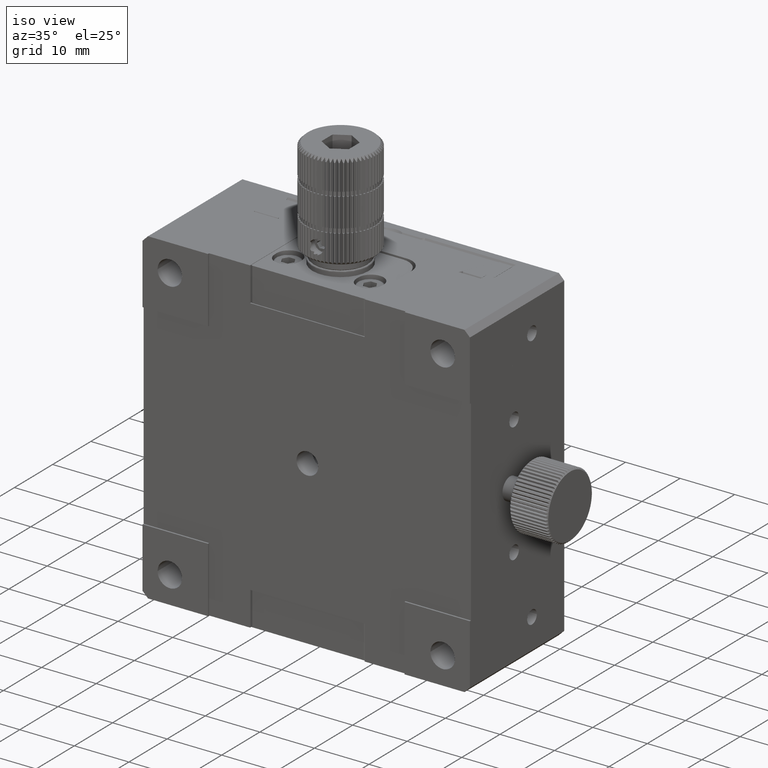
[diagram: clean part render]
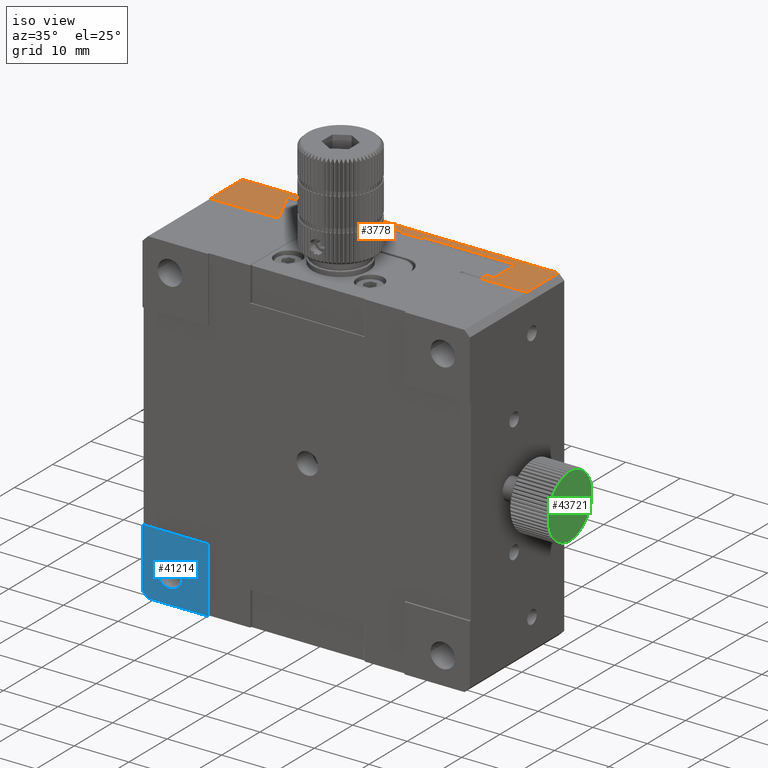
[diagram: same view with three faces highlighted in distinct colors, each labeled with its STEP entity id]
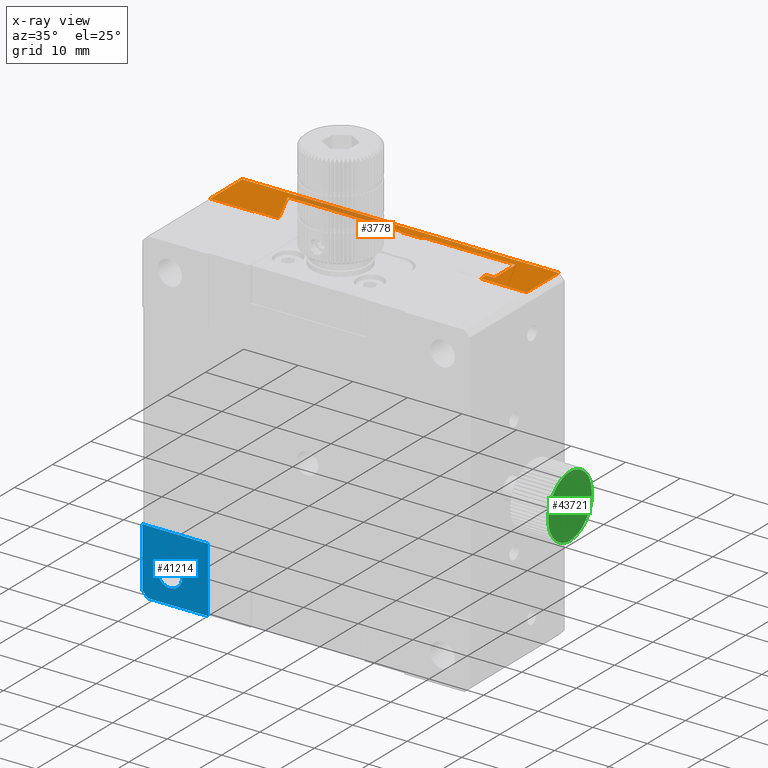
[diagram: x-ray of the same camera — body ghosted, the three highlighted faces saturated]
A machine part, iso view with three faces highlighted in distinct colors.
The next image is the same camera in x-ray (body ghosted, the three faces saturated) — at least one of them is partly hidden behind the body in this view.
Their STEP definitions:

[orange] entity #3778 — the highlighted planar face has unit normal (0, -0, 1).
#325 = LINE ( 'NONE', #21291, #65846 ) ;
#432 = CARTESIAN_POINT ( 'NONE',  ( 72.10815170115014894, 59.70294788844022804, 80.22904667704473525 ) ) ;
#543 = FACE_OUTER_BOUND ( 'NONE', #53449, .T. ) ;
#1493 = EDGE_CURVE ( 'NONE', #29576, #29536, #51412, .T. ) ;
#1682 = CARTESIAN_POINT ( 'NONE',  ( 21.05815170115008073, 52.64446860276301976, 80.22904667704482051 ) ) ;
#2048 = EDGE_CURVE ( 'NONE', #66792, #64728, #63576, .T. ) ;
#2277 = CARTESIAN_POINT ( 'NONE',  ( 33.35815170115007078, 52.82654557281198748, 80.22904667704480630 ) ) ;
#2415 = CARTESIAN_POINT ( 'NONE',  ( 32.31359107524117036, 55.26685083122947617, 80.22904667704480630 ) ) ;
#3261 = VERTEX_POINT ( 'NONE', #12279 ) ;
#3625 = CARTESIAN_POINT ( 'NONE',  ( 20.05815170114998125, 59.31600454547530177, 80.22904667704482051 ) ) ;
#3778 = ADVANCED_FACE ( 'NONE', ( #543 ), #42197, .T. ) ;
#4507 = CARTESIAN_POINT ( 'NONE',  ( 33.35815170115006367, 53.06532955048603384, 80.22904667704480630 ) ) ;
#5037 = VECTOR ( 'NONE', #45943, 1000.000000000000000 ) ;
#5071 = LINE ( 'NONE', #31550, #36426 ) ;
#7370 = VERTEX_POINT ( 'NONE', #43522 ) ;
#8144 = ORIENTED_EDGE ( 'NONE', *, *, #38265, .T. ) ;
#8396 = ORIENTED_EDGE ( 'NONE', *, *, #38250, .F. ) ;
#8597 = CARTESIAN_POINT ( 'NONE',  ( 44.59989413165446592, 59.70294788844032041, 80.22904667704477788 ) ) ;
#8728 = VERTEX_POINT ( 'NONE', #15324 ) ;
#9062 = EDGE_CURVE ( 'NONE', #3261, #29576, #54902, .T. ) ;
#9269 = CARTESIAN_POINT ( 'NONE',  ( 48.53828328579301399, 59.31600454547530887, 80.22904667704477788 ) ) ;
#9869 = CARTESIAN_POINT ( 'NONE',  ( 70.60815170115003525, 52.64446860276284212, 80.22904667704474946 ) ) ;
#10220 = DIRECTION ( 'NONE',  ( 4.044064531500966096E-15, 1.000000000000000000, -0.000000000000000000 ) ) ;
#10586 = VERTEX_POINT ( 'NONE', #4507 ) ;
#10661 = CARTESIAN_POINT ( 'NONE',  ( 55.14806868064293610, 59.51128224827511559, 80.22904667704477788 ) ) ;
#10806 = DIRECTION ( 'NONE',  ( -4.044064531500966096E-15, -1.000000000000000000, -0.000000000000000000 ) ) ;
#11087 = VECTOR ( 'NONE', #27030, 1000.000000000000000 ) ;
#12279 = CARTESIAN_POINT ( 'NONE',  ( 79.05815170115008073, 61.03657315266974592, 80.22904667704472104 ) ) ;
#12521 = VERTEX_POINT ( 'NONE', #49401 ) ;
#12531 = ORIENTED_EDGE ( 'NONE', *, *, #42573, .T. ) ;
#12984 = VERTEX_POINT ( 'NONE', #29308 ) ;
#14172 = CARTESIAN_POINT ( 'NONE',  ( 29.05815170115022283, 96.33657315266994203, 80.22904667704480630 ) ) ;
#15324 = CARTESIAN_POINT ( 'NONE',  ( 48.53828328579301399, 59.31600454547530887, 80.22904667704477788 ) ) ;
#15624 = LINE ( 'NONE', #58007, #32647 ) ;
#15728 = DIRECTION ( 'NONE',  ( 1.000000000000000000, 0.000000000000000000, -1.529834895190537477E-15 ) ) ;
#16976 = DIRECTION ( 'NONE',  ( 1.000000000000000000, 0.000000000000000000, -1.529834895190537477E-15 ) ) ;
#17232 = VERTEX_POINT ( 'NONE', #44783 ) ;
#17744 = CARTESIAN_POINT ( 'NONE',  ( 30.29612268022863830, 59.70294788844034173, 80.22904667704480630 ) ) ;
#18379 = EDGE_CURVE ( 'NONE', #18647, #20755, #33721, .T. ) ;
#18557 = CARTESIAN_POINT ( 'NONE',  ( 48.77318779754595113, 59.44020278623609244, 80.22904667704479209 ) ) ;
#18647 = VERTEX_POINT ( 'NONE', #9869 ) ;
#18660 = ORIENTED_EDGE ( 'NONE', *, *, #44884, .T. ) ;
#18858 = VECTOR ( 'NONE', #61370, 1000.000000000000000 ) ;
#19054 = LINE ( 'NONE', #41443, #50111 ) ;
#19128 = B_SPLINE_CURVE_WITH_KNOTS ( 'NONE', 3,
 ( #8597, #50299, #50633, #24415, #45454, #19258 ),
 .UNSPECIFIED., .F., .F.,
 ( 4, 2, 4 ),
 ( 6.938893903907228378E-18, 0.0003183844691076089927, 0.0006367689382152110465 ),
 .UNSPECIFIED. ) ;
#19151 = CARTESIAN_POINT ( 'NONE',  ( 20.05815170114998125, 59.70294788844025646, 80.22904667704482051 ) ) ;
#19258 = CARTESIAN_POINT ( 'NONE',  ( 45.05815170115005941, 59.31600454547530887, 80.22904667704477788 ) ) ;
#20036 = AXIS2_PLACEMENT_3D ( 'NONE', #38022, #32161, #63206 ) ;
#20122 = LINE ( 'NONE', #3625, #37445 ) ;
#20171 = VECTOR ( 'NONE', #34053, 1000.000000000000000 ) ;
#20755 = VERTEX_POINT ( 'NONE', #23261 ) ;
#21291 = CARTESIAN_POINT ( 'NONE',  ( 20.05815170114998125, 59.70294788844034883, 80.22904667704482051 ) ) ;
#21310 = CARTESIAN_POINT ( 'NONE',  ( 55.05815170115006651, 59.31600454547528045, 80.22904667704476367 ) ) ;
#21391 = VECTOR ( 'NONE', #24688, 1000.000000000000000 ) ;
#21939 = CARTESIAN_POINT ( 'NONE',  ( 55.51640927064564579, 59.70294788844025646, 80.22904667704476367 ) ) ;
#22492 = CARTESIAN_POINT ( 'NONE',  ( 20.05815170114998125, 52.64446860276301976, 80.22904667704482051 ) ) ;
#23083 = EDGE_CURVE ( 'NONE', #63766, #66792, #30161, .T. ) ;
#23261 = CARTESIAN_POINT ( 'NONE',  ( 79.05815170115005230, 52.64446860276281370, 80.22904667704472104 ) ) ;
#23390 = CARTESIAN_POINT ( 'NONE',  ( 20.05815170114998125, 52.64446860276284212, 80.22904667704482051 ) ) ;
#24341 = EDGE_CURVE ( 'NONE', #12521, #56355, #19128, .T. ) ;
#24415 = CARTESIAN_POINT ( 'NONE',  ( 44.96787964750015476, 59.51175992926563652, 80.22904667704479209 ) ) ;
#24688 = DIRECTION ( 'NONE',  ( -1.000000000000000000, 4.044064531500963730E-15, 1.529834895190534914E-15 ) ) ;
#25324 = ORIENTED_EDGE ( 'NONE', *, *, #1493, .T. ) ;
#26315 = B_SPLINE_CURVE_WITH_KNOTS ( 'NONE', 3,
 ( #9269, #18557, #34736, #45439, #56470, #28874, #55787, #39231, #55083, #39564 ),
 .UNSPECIFIED., .F., .F.,
 ( 4, 2, 2, 2, 4 ),
 ( 0.000000000000000000, 0.0007867719291636782013, 0.001573543858327356403, 0.002360315787491034604, 0.003147087716654712805 ),
 .UNSPECIFIED. ) ;
#26663 = EDGE_CURVE ( 'NONE', #56355, #8728, #47415, .T. ) ;
#27030 = DIRECTION ( 'NONE',  ( -1.658650317003230900E-34, -1.000000000000000000, -1.084202172546632728E-19 ) ) ;
#27081 = EDGE_CURVE ( 'NONE', #29536, #55600, #38671, .T. ) ;
#27105 = ORIENTED_EDGE ( 'NONE', *, *, #52237, .F. ) ;
#27803 = VECTOR ( 'NONE', #51214, 1000.000000000000000 ) ;
#28663 = DIRECTION ( 'NONE',  ( 1.000000000000000000, 0.000000000000000000, -1.529834895190537477E-15 ) ) ;
#28874 = CARTESIAN_POINT ( 'NONE',  ( 50.32464283857801490, 59.70290933974226277, 80.22904667704477788 ) ) ;
#29247 = CARTESIAN_POINT ( 'NONE',  ( 33.35815170115006367, 53.06532955048603384, 80.22904667704480630 ) ) ;
#29308 = CARTESIAN_POINT ( 'NONE',  ( 55.05815170115006651, 59.31600454547528045, 80.22904667704476367 ) ) ;
#29536 = VERTEX_POINT ( 'NONE', #1682 ) ;
#29576 = VERTEX_POINT ( 'NONE', #54379 ) ;
#30161 = LINE ( 'NONE', #19151, #27803 ) ;
#30355 = CARTESIAN_POINT ( 'NONE',  ( 21.05815170115010204, 36.33657315266998467, 80.22904667704482051 ) ) ;
#31327 = ORIENTED_EDGE ( 'NONE', *, *, #66217, .F. ) ;
#31550 = CARTESIAN_POINT ( 'NONE',  ( 70.60815170115021999, 96.33657315266977150, 80.22904667704474946 ) ) ;
#31773 = LINE ( 'NONE', #42805, #48132 ) ;
#32161 = DIRECTION ( 'NONE',  ( 1.529834895190537477E-15, -1.084202172546632728E-19, 1.000000000000000000 ) ) ;
#32516 = VECTOR ( 'NONE', #50359, 1000.000000000000000 ) ;
#32647 = VECTOR ( 'NONE', #16976, 1000.000000000000000 ) ;
#33022 = CARTESIAN_POINT ( 'NONE',  ( 31.28995718846100260, 57.47802591839305819, 80.22904667704480630 ) ) ;
#33721 = LINE ( 'NONE', #23390, #20171 ) ;
#33863 = CARTESIAN_POINT ( 'NONE',  ( 20.05815170115008073, 61.03657315266993066, 80.22904667704489157 ) ) ;
#34053 = DIRECTION ( 'NONE',  ( 1.000000000000000000, 0.000000000000000000, -1.529834895190537477E-15 ) ) ;
#34274 = VERTEX_POINT ( 'NONE', #2277 ) ;
#34736 = CARTESIAN_POINT ( 'NONE',  ( 49.01754752376809421, 59.53632290999900789, 80.22904667704476367 ) ) ;
#35056 = ORIENTED_EDGE ( 'NONE', *, *, #2048, .T. ) ;
#35987 = EDGE_CURVE ( 'NONE', #20755, #3261, #19054, .T. ) ;
#36026 = ORIENTED_EDGE ( 'NONE', *, *, #24341, .T. ) ;
#36426 = VECTOR ( 'NONE', #10220, 1000.000000000000000 ) ;
#37119 = CARTESIAN_POINT ( 'NONE',  ( 45.05815170115005941, 59.31600454547530887, 80.22904667704477788 ) ) ;
#37311 = ORIENTED_EDGE ( 'NONE', *, *, #35987, .T. ) ;
#37388 = CARTESIAN_POINT ( 'NONE',  ( 20.05815170114998125, 59.31600454547530887, 80.22904667704482051 ) ) ;
#37445 = VECTOR ( 'NONE', #57000, 1000.000000000000000 ) ;
#38022 = CARTESIAN_POINT ( 'NONE',  ( 20.05815170114998125, 36.33657315266998467, 80.22904667704482051 ) ) ;
#38250 = EDGE_CURVE ( 'NONE', #10586, #34274, #31773, .T. ) ;
#38265 = EDGE_CURVE ( 'NONE', #17232, #34274, #15624, .T. ) ;
#38671 = LINE ( 'NONE', #22492, #45680 ) ;
#39231 = CARTESIAN_POINT ( 'NONE',  ( 51.09362212894896516, 59.53808683234442611, 80.22904667704476367 ) ) ;
#39333 = ORIENTED_EDGE ( 'NONE', *, *, #65021, .T. ) ;
#39564 = CARTESIAN_POINT ( 'NONE',  ( 51.57802011650709773, 59.31600454547528045, 80.22904667704477788 ) ) ;
#39891 = VERTEX_POINT ( 'NONE', #45932 ) ;
#39904 = B_SPLINE_CURVE_WITH_KNOTS ( 'NONE', 3,
 ( #29247, #2415, #33022, #49259 ),
 .UNSPECIFIED., .F., .F.,
 ( 4, 4 ),
 ( 2.194270917860438266E-17, 0.007309856286228339634 ),
 .UNSPECIFIED. ) ;
#40201 = LINE ( 'NONE', #46402, #21391 ) ;
#41039 = CARTESIAN_POINT ( 'NONE',  ( 72.10815170115013473, 54.10814670791576475, 80.22904667704472104 ) ) ;
#41443 = CARTESIAN_POINT ( 'NONE',  ( 79.05815170115005230, 36.33657315266998467, 80.22904667704472104 ) ) ;
#41520 = ORIENTED_EDGE ( 'NONE', *, *, #9062, .T. ) ;
#41662 = CARTESIAN_POINT ( 'NONE',  ( 29.05815170115004875, 52.64446860276300555, 80.22904667704480630 ) ) ;
#42197 = PLANE ( 'NONE',  #20036 ) ;
#42314 = DIRECTION ( 'NONE',  ( 1.000000000000000000, 0.000000000000000000, -1.529834895190537477E-15 ) ) ;
#42317 = ORIENTED_EDGE ( 'NONE', *, *, #23083, .T. ) ;
#42573 = EDGE_CURVE ( 'NONE', #60809, #12521, #325, .T. ) ;
#42805 = CARTESIAN_POINT ( 'NONE',  ( 33.35815170115023420, 96.33657315266975729, 80.22904667704480630 ) ) ;
#43522 = CARTESIAN_POINT ( 'NONE',  ( 70.60815170115006367, 54.10814670791577896, 80.22904667704472104 ) ) ;
#44200 = B_SPLINE_CURVE_WITH_KNOTS ( 'NONE', 3,
 ( #21310, #52363, #10661, #46848, #63348, #45210 ),
 .UNSPECIFIED., .F., .F.,
 ( 4, 2, 4 ),
 ( 1.551583845779545699E-17, 0.0003168569488583838087, 0.0006337138977167521134 ),
 .UNSPECIFIED. ) ;
#44783 = CARTESIAN_POINT ( 'NONE',  ( 29.05815170115002744, 52.82654557281199459, 80.22904667704480630 ) ) ;
#44817 = LINE ( 'NONE', #14172, #32516 ) ;
#44884 = EDGE_CURVE ( 'NONE', #8728, #39891, #26315, .T. ) ;
#45210 = CARTESIAN_POINT ( 'NONE',  ( 55.51640927064564579, 59.70294788844025646, 80.22904667704476367 ) ) ;
#45439 = CARTESIAN_POINT ( 'NONE',  ( 49.52664142020572058, 59.66805939803035130, 80.22904667704473525 ) ) ;
#45454 = CARTESIAN_POINT ( 'NONE',  ( 45.02369551962942751, 59.41762160378897306, 80.22904667704479209 ) ) ;
#45680 = VECTOR ( 'NONE', #28663, 1000.000000000000000 ) ;
#45932 = CARTESIAN_POINT ( 'NONE',  ( 51.57802011650709773, 59.31600454547528045, 80.22904667704477788 ) ) ;
#45943 = DIRECTION ( 'NONE',  ( -1.000000000000000000, 2.786949713345703173E-15, 2.786949713345766676E-15 ) ) ;
#46402 = CARTESIAN_POINT ( 'NONE',  ( 80.05815170115008073, 54.10814670791572922, 80.22904667704469261 ) ) ;
#46848 = CARTESIAN_POINT ( 'NONE',  ( 55.30508683203052556, 59.65546639754870739, 80.22904667704474946 ) ) ;
#47044 = ORIENTED_EDGE ( 'NONE', *, *, #18379, .T. ) ;
#47415 = LINE ( 'NONE', #37388, #57733 ) ;
#48132 = VECTOR ( 'NONE', #10806, 1000.000000000000000 ) ;
#48261 = EDGE_CURVE ( 'NONE', #64728, #7370, #40201, .T. ) ;
#48285 = ORIENTED_EDGE ( 'NONE', *, *, #55503, .T. ) ;
#49259 = CARTESIAN_POINT ( 'NONE',  ( 30.29612268022863830, 59.70294788844034173, 80.22904667704480630 ) ) ;
#49401 = CARTESIAN_POINT ( 'NONE',  ( 44.59989413165446592, 59.70294788844032041, 80.22904667704477788 ) ) ;
#50111 = VECTOR ( 'NONE', #61754, 1000.000000000000000 ) ;
#50299 = CARTESIAN_POINT ( 'NONE',  ( 44.70777500624257783, 59.70294788844029199, 80.22904667704480630 ) ) ;
#50359 = DIRECTION ( 'NONE',  ( -4.044064531500966096E-15, -1.000000000000000000, -0.000000000000000000 ) ) ;
#50633 = CARTESIAN_POINT ( 'NONE',  ( 44.81075812264253244, 59.65573495709907093, 80.22904667704482051 ) ) ;
#51214 = DIRECTION ( 'NONE',  ( 1.000000000000000000, 0.000000000000000000, -1.529834895190537477E-15 ) ) ;
#51412 = LINE ( 'NONE', #30355, #18858 ) ;
#52237 = EDGE_CURVE ( 'NONE', #17232, #55600, #44817, .T. ) ;
#52363 = CARTESIAN_POINT ( 'NONE',  ( 55.09264991381699872, 59.41774556068885715, 80.22904667704476367 ) ) ;
#53449 = EDGE_LOOP ( 'NONE', ( #31327, #47044, #37311, #41520, #25324, #66334, #27105, #8144, #8396, #39333, #12531, #36026, #56494, #18660, #60994, #48285, #42317, #35056, #65175 ) ) ;
#54379 = CARTESIAN_POINT ( 'NONE',  ( 21.05815170115009494, 61.03657315266994488, 80.22904667704483472 ) ) ;
#54902 = LINE ( 'NONE', #33863, #5037 ) ;
#55083 = CARTESIAN_POINT ( 'NONE',  ( 51.34303148401061634, 59.44024726238631473, 80.22904667704477788 ) ) ;
#55503 = EDGE_CURVE ( 'NONE', #12984, #63766, #44200, .T. ) ;
#55600 = VERTEX_POINT ( 'NONE', #41662 ) ;
#55787 = CARTESIAN_POINT ( 'NONE',  ( 50.58467475604262376, 59.66890569793075372, 80.22904667704476367 ) ) ;
#56355 = VERTEX_POINT ( 'NONE', #37119 ) ;
#56470 = CARTESIAN_POINT ( 'NONE',  ( 49.79255663400212484, 59.70298637227422489, 80.22904667704477788 ) ) ;
#56494 = ORIENTED_EDGE ( 'NONE', *, *, #26663, .T. ) ;
#57000 = DIRECTION ( 'NONE',  ( 1.000000000000000000, 0.000000000000000000, -1.529834895190537477E-15 ) ) ;
#57733 = VECTOR ( 'NONE', #15728, 1000.000000000000000 ) ;
#58007 = CARTESIAN_POINT ( 'NONE',  ( 20.05815170114998125, 52.82654557281200169, 80.22904667704482051 ) ) ;
#60809 = VERTEX_POINT ( 'NONE', #17744 ) ;
#60847 = EDGE_CURVE ( 'NONE', #39891, #12984, #20122, .T. ) ;
#60994 = ORIENTED_EDGE ( 'NONE', *, *, #60847, .T. ) ;
#61370 = DIRECTION ( 'NONE',  ( -1.658650317003230900E-34, -1.000000000000000000, -1.084202172546632728E-19 ) ) ;
#61754 = DIRECTION ( 'NONE',  ( 1.658650317003230900E-34, 1.000000000000000000, 1.084202172546632728E-19 ) ) ;
#63206 = DIRECTION ( 'NONE',  ( 1.000000000000000000, 0.000000000000000000, -1.529834895190537477E-15 ) ) ;
#63348 = CARTESIAN_POINT ( 'NONE',  ( 55.40815958516823514, 59.70294788844024936, 80.22904667704477788 ) ) ;
#63576 = LINE ( 'NONE', #63904, #11087 ) ;
#63766 = VERTEX_POINT ( 'NONE', #21939 ) ;
#63904 = CARTESIAN_POINT ( 'NONE',  ( 72.10815170115007788, 36.33657315266998467, 80.22904667704473525 ) ) ;
#64728 = VERTEX_POINT ( 'NONE', #41039 ) ;
#65021 = EDGE_CURVE ( 'NONE', #10586, #60809, #39904, .T. ) ;
#65175 = ORIENTED_EDGE ( 'NONE', *, *, #48261, .T. ) ;
#65846 = VECTOR ( 'NONE', #42314, 1000.000000000000000 ) ;
#66217 = EDGE_CURVE ( 'NONE', #18647, #7370, #5071, .T. ) ;
#66334 = ORIENTED_EDGE ( 'NONE', *, *, #27081, .T. ) ;
#66792 = VERTEX_POINT ( 'NONE', #432 ) ;

[blue] entity #41214 — the highlighted planar face has unit normal (-0, -1, 0).
#299 = CARTESIAN_POINT ( 'NONE',  ( 20.05815170114988888, 36.33657315266991361, 32.22904667704491999 ) ) ;
#824 = EDGE_LOOP ( 'NONE', ( #33374 ) ) ;
#1544 = ORIENTED_EDGE ( 'NONE', *, *, #63346, .T. ) ;
#2115 = VECTOR ( 'NONE', #14434, 1000.000000000000000 ) ;
#2751 = ORIENTED_EDGE ( 'NONE', *, *, #43564, .F. ) ;
#6301 = FACE_BOUND ( 'NONE', #824, .T. ) ;
#8166 = CIRCLE ( 'NONE', #66486, 2.249999999999998668 ) ;
#8562 = ORIENTED_EDGE ( 'NONE', *, *, #65039, .F. ) ;
#9672 = DIRECTION ( 'NONE',  ( -4.069722497502069316E-15, 0.000000000000000000, -1.000000000000000000 ) ) ;
#11384 = AXIS2_PLACEMENT_3D ( 'NONE', #37946, #38279, #27259 ) ;
#14434 = DIRECTION ( 'NONE',  ( 1.000000000000000000, 0.000000000000000000, -3.491481338843133355E-15 ) ) ;
#17334 = LINE ( 'NONE', #38319, #58959 ) ;
#18228 = VERTEX_POINT ( 'NONE', #54875 ) ;
#18412 = ORIENTED_EDGE ( 'NONE', *, *, #50318, .T. ) ;
#18731 = CARTESIAN_POINT ( 'NONE',  ( 32.05815170114986046, 36.33657315266987098, 32.22904667704489157 ) ) ;
#19036 = VERTEX_POINT ( 'NONE', #19376 ) ;
#19376 = CARTESIAN_POINT ( 'NONE',  ( 32.05815170114983914, 36.33657315266987098, 20.22904667704490222 ) ) ;
#20983 = VECTOR ( 'NONE', #48764, 1000.000000000000000 ) ;
#23227 = CARTESIAN_POINT ( 'NONE',  ( 20.05815170114988533, 36.33657315266990651, 32.22904667704494130 ) ) ;
#24913 = EDGE_CURVE ( 'NONE', #37082, #37082, #8166, .T. ) ;
#27259 = DIRECTION ( 'NONE',  ( 1.000000000000000000, -3.491481338843133355E-15, 0.000000000000000000 ) ) ;
#27588 = CARTESIAN_POINT ( 'NONE',  ( 20.05815170114993862, 36.33657315266990651, 20.22904667704492709 ) ) ;
#33140 = DIRECTION ( 'NONE',  ( 0.7071067811865414665, -4.906538933386766476E-15, -0.7071067811865536790 ) ) ;
#33374 = ORIENTED_EDGE ( 'NONE', *, *, #24913, .T. ) ;
#33456 = DIRECTION ( 'NONE',  ( 3.491481338843133355E-15, 1.000000000000000000, -1.219044193948983948E-29 ) ) ;
#37082 = VERTEX_POINT ( 'NONE', #52295 ) ;
#37946 = CARTESIAN_POINT ( 'NONE',  ( 20.05815170115006651, 36.33657315266990651, 80.22904667704491999 ) ) ;
#38279 = DIRECTION ( 'NONE',  ( -3.491481338843133355E-15, -1.000000000000000000, 1.219044193948983948E-29 ) ) ;
#38319 = CARTESIAN_POINT ( 'NONE',  ( 20.05815170114985690, 36.33657315266990651, 21.22904667704493420 ) ) ;
#40286 = CARTESIAN_POINT ( 'NONE',  ( 20.05815170114995638, 36.33657315266991361, 50.22904667704492709 ) ) ;
#41214 = ADVANCED_FACE ( 'NONE', ( #53506, #6301 ), #52818, .T. ) ;
#42380 = VERTEX_POINT ( 'NONE', #18731 ) ;
#43564 = EDGE_CURVE ( 'NONE', #42380, #19036, #57551, .T. ) ;
#45106 = DIRECTION ( 'NONE',  ( 3.491481338843133355E-15, 0.000000000000000000, 1.000000000000000000 ) ) ;
#45122 = VERTEX_POINT ( 'NONE', #299 ) ;
#48764 = DIRECTION ( 'NONE',  ( 1.000000000000000000, 0.000000000000000000, -3.780601918172600941E-15 ) ) ;
#48997 = ORIENTED_EDGE ( 'NONE', *, *, #60731, .F. ) ;
#49688 = CARTESIAN_POINT ( 'NONE',  ( 25.05815170114985335, 36.33657315266988519, 25.22904667704491644 ) ) ;
#50318 = EDGE_CURVE ( 'NONE', #56954, #18228, #17334, .T. ) ;
#50624 = LINE ( 'NONE', #27588, #2115 ) ;
#52295 = CARTESIAN_POINT ( 'NONE',  ( 22.80815170114985690, 36.33657315266989229, 25.22904667704491644 ) ) ;
#52818 = PLANE ( 'NONE',  #11384 ) ;
#53506 = FACE_OUTER_BOUND ( 'NONE', #59531, .T. ) ;
#53844 = DIRECTION ( 'NONE',  ( -1.000000000000000000, 3.083952846180992055E-15, 0.000000000000000000 ) ) ;
#53940 = LINE ( 'NONE', #23227, #20983 ) ;
#54875 = CARTESIAN_POINT ( 'NONE',  ( 21.05815170114989954, 36.33657315266990651, 20.22904667704490933 ) ) ;
#56492 = LINE ( 'NONE', #40286, #67262 ) ;
#56954 = VERTEX_POINT ( 'NONE', #61118 ) ;
#57551 = LINE ( 'NONE', #62692, #65940 ) ;
#58959 = VECTOR ( 'NONE', #33140, 1000.000000000000000 ) ;
#59531 = EDGE_LOOP ( 'NONE', ( #2751, #48997, #8562, #18412, #1544 ) ) ;
#60731 = EDGE_CURVE ( 'NONE', #45122, #42380, #53940, .T. ) ;
#61118 = CARTESIAN_POINT ( 'NONE',  ( 20.05815170114986756, 36.33657315266991361, 21.22904667704491999 ) ) ;
#62692 = CARTESIAN_POINT ( 'NONE',  ( 32.05815170114983914, 36.33657315266986387, 20.22904667704488801 ) ) ;
#63346 = EDGE_CURVE ( 'NONE', #18228, #19036, #50624, .T. ) ;
#65039 = EDGE_CURVE ( 'NONE', #56954, #45122, #56492, .T. ) ;
#65940 = VECTOR ( 'NONE', #9672, 1000.000000000000000 ) ;
#66486 = AXIS2_PLACEMENT_3D ( 'NONE', #49688, #33456, #53844 ) ;
#67262 = VECTOR ( 'NONE', #45106, 1000.000000000000000 ) ;

[green] entity #43721 — the highlighted planar face has unit normal (-1, 0, 0).
#97 = DIRECTION ( 'NONE',  ( -1.000000000000000000, 4.275397595010830718E-15, 1.766407939803210777E-15 ) ) ;
#372 = CARTESIAN_POINT ( 'NONE',  ( 91.06022429536632501, 51.07249865786468490, 46.41500222082284921 ) ) ;
#384 = CIRCLE ( 'NONE', #37755, 5.699999999964747488 ) ;
#441 = AXIS2_PLACEMENT_3D ( 'NONE', #5732, #57759, #57422 ) ;
#575 = AXIS2_PLACEMENT_3D ( 'NONE', #5020, #26657, #4344 ) ;
#610 = CIRCLE ( 'NONE', #14899, 5.699999999964747488 ) ;
#747 = DIRECTION ( 'NONE',  ( -4.869399230842205989E-15, -1.000000000000000000, 0.000000000000000000 ) ) ;
#757 = DIRECTION ( 'NONE',  ( -1.000000000000000000, 4.275397595010830718E-15, 1.766407939803210777E-15 ) ) ;
#875 = CIRCLE ( 'NONE', #14071, 5.699999999964747488 ) ;
#1340 = EDGE_CURVE ( 'NONE', #60702, #67351, #27472, .T. ) ;
#1382 = EDGE_CURVE ( 'NONE', #38825, #28825, #3332, .T. ) ;
#1734 = AXIS2_PLACEMENT_3D ( 'NONE', #40756, #62452, #57639 ) ;
#1739 = ORIENTED_EDGE ( 'NONE', *, *, #38660, .F. ) ;
#1968 = DIRECTION ( 'NONE',  ( -4.869399230842205989E-15, -1.000000000000000000, 0.000000000000000000 ) ) ;
#2097 = AXIS2_PLACEMENT_3D ( 'NONE', #9415, #40746, #29367 ) ;
#2274 = ORIENTED_EDGE ( 'NONE', *, *, #1382, .F. ) ;
#2321 = CARTESIAN_POINT ( 'NONE',  ( 91.06022429536633922, 49.68657315265205909, 55.16539147858547665 ) ) ;
#2644 = CARTESIAN_POINT ( 'NONE',  ( 91.06022429536633922, 52.04378226120030604, 52.54744554256242850 ) ) ;
#2940 = DIRECTION ( 'NONE',  ( -4.869399230842205989E-15, -1.000000000000000000, 0.000000000000000000 ) ) ;
#3042 = CARTESIAN_POINT ( 'NONE',  ( 91.06022429534726825, 46.83657315266968624, 50.22904667704470683 ) ) ;
#3144 = VERTEX_POINT ( 'NONE', #26925 ) ;
#3176 = VERTEX_POINT ( 'NONE', #5433 ) ;
#3224 = DIRECTION ( 'NONE',  ( -4.869399230842205989E-15, -1.000000000000000000, 0.000000000000000000 ) ) ;
#3332 = CIRCLE ( 'NONE', #27619, 5.699999999964747488 ) ;
#3515 = DIRECTION ( 'NONE',  ( -1.000000000000000000, 4.275397595010830718E-15, 1.766407939803210777E-15 ) ) ;
#3675 = VERTEX_POINT ( 'NONE', #27333 ) ;
#4176 = EDGE_CURVE ( 'NONE', #17424, #41180, #67379, .T. ) ;
#4256 = DIRECTION ( 'NONE',  ( -4.869399230842205989E-15, -1.000000000000000000, 0.000000000000000000 ) ) ;
#4287 = VERTEX_POINT ( 'NONE', #7135 ) ;
#4344 = DIRECTION ( 'NONE',  ( -4.869399230842205989E-15, -1.000000000000000000, 0.000000000000000000 ) ) ;
#4485 = CARTESIAN_POINT ( 'NONE',  ( 91.06022429536629659, 41.62936404413909486, 47.91064781152694252 ) ) ;
#4690 = CIRCLE ( 'NONE', #31061, 5.699999999964747488 ) ;
#4754 = DIRECTION ( 'NONE',  ( -4.869399230842205989E-15, -1.000000000000000000, 0.000000000000000000 ) ) ;
#4811 = CIRCLE ( 'NONE', #53198, 5.699999999964747488 ) ;
#4928 = AXIS2_PLACEMENT_3D ( 'NONE', #18103, #54959, #7757 ) ;
#4950 = VERTEX_POINT ( 'NONE', #33872 ) ;
#5020 = CARTESIAN_POINT ( 'NONE',  ( 91.06022429534726825, 46.83657315266968624, 50.22904667704470683 ) ) ;
#5197 = EDGE_CURVE ( 'NONE', #48258, #3176, #4811, .T. ) ;
#5208 = ORIENTED_EDGE ( 'NONE', *, *, #20572, .F. ) ;
#5384 = ORIENTED_EDGE ( 'NONE', *, *, #42613, .F. ) ;
#5433 = CARTESIAN_POINT ( 'NONE',  ( 91.06022429536631080, 42.60064764747473021, 54.04309113326659286 ) ) ;
#5630 = CARTESIAN_POINT ( 'NONE',  ( 91.06022429534726825, 46.83657315266968624, 50.22904667704470683 ) ) ;
#5689 = AXIS2_PLACEMENT_3D ( 'NONE', #9209, #67737, #56757 ) ;
#5732 = CARTESIAN_POINT ( 'NONE',  ( 91.06022429534726825, 46.83657315266968624, 50.22904667704470683 ) ) ;
#5818 = VERTEX_POINT ( 'NONE', #15446 ) ;
#5942 = DIRECTION ( 'NONE',  ( -4.869399230842205989E-15, -1.000000000000000000, 0.000000000000000000 ) ) ;
#6039 = EDGE_CURVE ( 'NONE', #21705, #10602, #35644, .T. ) ;
#6074 = CARTESIAN_POINT ( 'NONE',  ( 91.06022429536629659, 41.16779834910559543, 50.82485891766661723 ) ) ;
#6291 = DIRECTION ( 'NONE',  ( -4.869399230842205989E-15, -1.000000000000000000, 0.000000000000000000 ) ) ;
#6314 = CARTESIAN_POINT ( 'NONE',  ( 91.06022429534726825, 46.83657315266968624, 50.22904667704470683 ) ) ;
#6431 = ORIENTED_EDGE ( 'NONE', *, *, #19177, .F. ) ;
#6462 = CIRCLE ( 'NONE', #53777, 5.699999999964747488 ) ;
#6695 = CIRCLE ( 'NONE', #52953, 5.699999999964747488 ) ;
#6713 = CARTESIAN_POINT ( 'NONE',  ( 91.06022429536631080, 46.24076091204780425, 44.56027187348060181 ) ) ;
#6814 = CARTESIAN_POINT ( 'NONE',  ( 91.06022429536632501, 50.18694909071611221, 45.61764980913607559 ) ) ;
#6935 = DIRECTION ( 'NONE',  ( -1.000000000000000000, 4.275397595010830718E-15, 1.766407939803210777E-15 ) ) ;
#6973 = CARTESIAN_POINT ( 'NONE',  ( 91.06022429534726825, 46.83657315266968624, 50.22904667704470683 ) ) ;
#7135 = CARTESIAN_POINT ( 'NONE',  ( 91.06022429536632501, 52.25759529551854854, 48.46764980911847687 ) ) ;
#7148 = ORIENTED_EDGE ( 'NONE', *, *, #13272, .F. ) ;
#7537 = CARTESIAN_POINT ( 'NONE',  ( 91.06022429536631080, 47.43238539329168191, 44.56027187348060892 ) ) ;
#7604 = AXIS2_PLACEMENT_3D ( 'NONE', #27795, #54354, #7827 ) ;
#7739 = ORIENTED_EDGE ( 'NONE', *, *, #18616, .F. ) ;
#7757 = DIRECTION ( 'NONE',  ( -4.869399230842205989E-15, -1.000000000000000000, 0.000000000000000000 ) ) ;
#7827 = DIRECTION ( 'NONE',  ( -4.869399230842205989E-15, -1.000000000000000000, 0.000000000000000000 ) ) ;
#8215 = CIRCLE ( 'NONE', #4928, 5.699999999964747488 ) ;
#8225 = EDGE_CURVE ( 'NONE', #64341, #10120, #39136, .T. ) ;
#8230 = CIRCLE ( 'NONE', #45655, 5.699999999964747488 ) ;
#8476 = ORIENTED_EDGE ( 'NONE', *, *, #13669, .F. ) ;
#8648 = DIRECTION ( 'NONE',  ( -4.869399230842205989E-15, -1.000000000000000000, 0.000000000000000000 ) ) ;
#8735 = EDGE_CURVE ( 'NONE', #64274, #37739, #46793, .T. ) ;
#8769 = VERTEX_POINT ( 'NONE', #46704 ) ;
#8830 = AXIS2_PLACEMENT_3D ( 'NONE', #6314, #63484, #31766 ) ;
#8927 = CARTESIAN_POINT ( 'NONE',  ( 91.06022429534726825, 46.83657315266968624, 50.22904667704470683 ) ) ;
#9053 = CARTESIAN_POINT ( 'NONE',  ( 91.06022429536629659, 41.90022835112894484, 47.37904667706229134 ) ) ;
#9163 = CARTESIAN_POINT ( 'NONE',  ( 91.06022429534726825, 46.83657315266968624, 50.22904667704470683 ) ) ;
#9165 = EDGE_CURVE ( 'NONE', #16457, #50871, #56725, .T. ) ;
#9209 = CARTESIAN_POINT ( 'NONE',  ( 91.06022429534726825, 46.83657315266968624, 50.22904667704470683 ) ) ;
#9217 = AXIS2_PLACEMENT_3D ( 'NONE', #11666, #43997, #32304 ) ;
#9231 = EDGE_CURVE ( 'NONE', #50871, #64341, #35800, .T. ) ;
#9377 = CARTESIAN_POINT ( 'NONE',  ( 91.06022429536633922, 49.15497201818739370, 55.43625578557534084 ) ) ;
#9415 = CARTESIAN_POINT ( 'NONE',  ( 91.06022429534726825, 46.83657315266968624, 50.22904667704470683 ) ) ;
#9646 = ORIENTED_EDGE ( 'NONE', *, *, #15660, .F. ) ;
#9669 = ORIENTED_EDGE ( 'NONE', *, *, #42944, .F. ) ;
#9731 = CIRCLE ( 'NONE', #67976, 5.699999999964747488 ) ;
#9757 = DIRECTION ( 'NONE',  ( -1.000000000000000000, 4.275397595010830718E-15, 1.766407939803210777E-15 ) ) ;
#10037 = CARTESIAN_POINT ( 'NONE',  ( 91.06022429536631080, 43.98657315268730628, 55.16539147858546244 ) ) ;
#10120 = VERTEX_POINT ( 'NONE', #6713 ) ;
#10213 = CARTESIAN_POINT ( 'NONE',  ( 91.06022429536629659, 41.26113182852147787, 51.41414331469857046 ) ) ;
#10476 = CARTESIAN_POINT ( 'NONE',  ( 91.06022429536632501, 51.77291795421050580, 47.37904667706239081 ) ) ;
#10602 = VERTEX_POINT ( 'NONE', #56878 ) ;
#10624 = DIRECTION ( 'NONE',  ( -4.869399230842205989E-15, -1.000000000000000000, 0.000000000000000000 ) ) ;
#10870 = DIRECTION ( 'NONE',  ( -4.869399230842205989E-15, -1.000000000000000000, 0.000000000000000000 ) ) ;
#11121 = CARTESIAN_POINT ( 'NONE',  ( 91.06022429536629659, 41.90022835112890220, 53.07904667702706547 ) ) ;
#11449 = AXIS2_PLACEMENT_3D ( 'NONE', #20314, #36465, #25788 ) ;
#11460 = DIRECTION ( 'NONE',  ( -1.000000000000000000, 4.275397595010830718E-15, 1.766407939803210777E-15 ) ) ;
#11504 = DIRECTION ( 'NONE',  ( -1.000000000000000000, 4.275397595010830718E-15, 1.766407939803210777E-15 ) ) ;
#11617 = EDGE_CURVE ( 'NONE', #36659, #43669, #54788, .T. ) ;
#11666 = CARTESIAN_POINT ( 'NONE',  ( 91.06022429534726825, 46.83657315266968624, 50.22904667704470683 ) ) ;
#12022 = DIRECTION ( 'NONE',  ( -1.000000000000000000, 3.942269589734075124E-15, 1.597918576475365727E-15 ) ) ;
#12125 = CARTESIAN_POINT ( 'NONE',  ( 91.06022429536631080, 49.68657315265213725, 45.29270187550397964 ) ) ;
#12918 = CARTESIAN_POINT ( 'NONE',  ( 91.06022429536629659, 43.02252869644782862, 45.99312117184974369 ) ) ;
#13111 = AXIS2_PLACEMENT_3D ( 'NONE', #19729, #34883, #3224 ) ;
#13264 = CARTESIAN_POINT ( 'NONE',  ( 91.06022429534726825, 46.83657315266968624, 50.22904667704470683 ) ) ;
#13272 = EDGE_CURVE ( 'NONE', #25030, #46021, #51662, .T. ) ;
#13669 = EDGE_CURVE ( 'NONE', #46924, #65523, #56069, .T. ) ;
#13759 = CARTESIAN_POINT ( 'NONE',  ( 91.06022429534726825, 46.83657315266968624, 50.22904667704470683 ) ) ;
#13877 = ORIENTED_EDGE ( 'NONE', *, *, #67919, .F. ) ;
#13895 = DIRECTION ( 'NONE',  ( -4.869399230842205989E-15, -1.000000000000000000, 0.000000000000000000 ) ) ;
#13936 = CARTESIAN_POINT ( 'NONE',  ( 91.06022429536631080, 46.83657315266975019, 44.52904667707995401 ) ) ;
#14071 = AXIS2_PLACEMENT_3D ( 'NONE', #41727, #37215, #747 ) ;
#14100 = DIRECTION ( 'NONE',  ( -4.869399230842205989E-15, -1.000000000000000000, 0.000000000000000000 ) ) ;
#14277 = CARTESIAN_POINT ( 'NONE',  ( 91.06022429534726825, 46.83657315266968624, 50.22904667704470683 ) ) ;
#14438 = ORIENTED_EDGE ( 'NONE', *, *, #11617, .F. ) ;
#14562 = DIRECTION ( 'NONE',  ( -1.000000000000000000, 4.275397595010830718E-15, 1.766407939803210777E-15 ) ) ;
#14772 = DIRECTION ( 'NONE',  ( -4.869399230842205989E-15, -1.000000000000000000, 0.000000000000000000 ) ) ;
#14899 = AXIS2_PLACEMENT_3D ( 'NONE', #63772, #97, #16587 ) ;
#14947 = DIRECTION ( 'NONE',  ( -1.000000000000000000, 4.275397595010830718E-15, 1.766407939803210777E-15 ) ) ;
#15015 = VERTEX_POINT ( 'NONE', #38398 ) ;
#15284 = DIRECTION ( 'NONE',  ( -1.000000000000000000, 4.275397595010830718E-15, 1.766407939803210777E-15 ) ) ;
#15446 = CARTESIAN_POINT ( 'NONE',  ( 91.06022429536633922, 52.41201447681789460, 51.41414331469860599 ) ) ;
#15499 = CARTESIAN_POINT ( 'NONE',  ( 91.06022429534726825, 46.83657315266968624, 50.22904667704470683 ) ) ;
#15559 = CARTESIAN_POINT ( 'NONE',  ( 91.06022429534726825, 46.83657315266968624, 50.22904667704470683 ) ) ;
#15620 = VERTEX_POINT ( 'NONE', #52836 ) ;
#15660 = EDGE_CURVE ( 'NONE', #17039, #18824, #29793, .T. ) ;
#15849 = EDGE_CURVE ( 'NONE', #15925, #4950, #61765, .T. ) ;
#15925 = VERTEX_POINT ( 'NONE', #10037 ) ;
#15980 = DIRECTION ( 'NONE',  ( -1.000000000000000000, 4.275397595010830718E-15, 1.766407939803210777E-15 ) ) ;
#16152 = CARTESIAN_POINT ( 'NONE',  ( 91.06022429534726825, 46.83657315266968624, 50.22904667704470683 ) ) ;
#16161 = DIRECTION ( 'NONE',  ( -1.000000000000000000, 4.275397595010830718E-15, 1.766407939803210777E-15 ) ) ;
#16457 = VERTEX_POINT ( 'NONE', #43990 ) ;
#16524 = EDGE_CURVE ( 'NONE', #18619, #38825, #26588, .T. ) ;
#16587 = DIRECTION ( 'NONE',  ( -4.869399230842205989E-15, -1.000000000000000000, 0.000000000000000000 ) ) ;
#16628 = CARTESIAN_POINT ( 'NONE',  ( 91.06022429534726825, 46.83657315266968624, 50.22904667704470683 ) ) ;
#16858 = DIRECTION ( 'NONE',  ( -1.000000000000000000, 4.275397595010830718E-15, 1.766407939803210777E-15 ) ) ;
#16903 = CIRCLE ( 'NONE', #63089, 5.699999999964747488 ) ;
#17039 = VERTEX_POINT ( 'NONE', #45300 ) ;
#17113 = EDGE_CURVE ( 'NONE', #10602, #5818, #38746, .T. ) ;
#17198 = CARTESIAN_POINT ( 'NONE',  ( 91.06022429536631080, 49.12766906478925222, 44.68369912062688343 ) ) ;
#17289 = CARTESIAN_POINT ( 'NONE',  ( 91.06022429536629659, 41.16779834910559543, 49.63323443642273247 ) ) ;
#17424 = VERTEX_POINT ( 'NONE', #30627 ) ;
#17546 = CARTESIAN_POINT ( 'NONE',  ( 91.06022429534726825, 46.83657315266968624, 50.22904667704470683 ) ) ;
#17689 = EDGE_CURVE ( 'NONE', #48193, #4287, #48750, .T. ) ;
#18103 = CARTESIAN_POINT ( 'NONE',  ( 91.06022429534726825, 46.83657315266968624, 50.22904667704470683 ) ) ;
#18250 = VERTEX_POINT ( 'NONE', #50417 ) ;
#18278 = EDGE_CURVE ( 'NONE', #53782, #8769, #384, .T. ) ;
#18552 = VERTEX_POINT ( 'NONE', #6074 ) ;
#18616 = EDGE_CURVE ( 'NONE', #46021, #47837, #37805, .T. ) ;
#18619 = VERTEX_POINT ( 'NONE', #10213 ) ;
#18656 = CARTESIAN_POINT ( 'NONE',  ( 91.06022429536633922, 51.77291795421046317, 53.07904667702708679 ) ) ;
#18753 = CARTESIAN_POINT ( 'NONE',  ( 91.06022429534726825, 46.83657315266968624, 50.22904667704470683 ) ) ;
#18824 = VERTEX_POINT ( 'NONE', #10476 ) ;
#19008 = DIRECTION ( 'NONE',  ( -1.000000000000000000, 4.275397595010830718E-15, 1.766407939803210777E-15 ) ) ;
#19052 = VERTEX_POINT ( 'NONE', #9053 ) ;
#19177 = EDGE_CURVE ( 'NONE', #65523, #15620, #31272, .T. ) ;
#19397 = ORIENTED_EDGE ( 'NONE', *, *, #8225, .F. ) ;
#19451 = CARTESIAN_POINT ( 'NONE',  ( 91.06022429534726825, 46.83657315266968624, 50.22904667704470683 ) ) ;
#19475 = CARTESIAN_POINT ( 'NONE',  ( 91.06022429534726825, 46.83657315266968624, 50.22904667704470683 ) ) ;
#19721 = CIRCLE ( 'NONE', #20789, 5.699999999964747488 ) ;
#19729 = CARTESIAN_POINT ( 'NONE',  ( 91.06022429534726825, 46.83657315266968624, 50.22904667704470683 ) ) ;
#20184 = EDGE_LOOP ( 'NONE', ( #64195, #52767, #23971, #20603, #41160, #5384, #41250, #5208, #24091, #6431, #8476, #65774, #7739, #7148, #55155, #58946, #40379, #35709, #55825, #59197, #42630, #61125, #14438, #44049, #24667, #49049, #42266, #2274, #54776, #61988, #26177, #64527, #40014, #46951, #30190, #1739, #58911, #27949, #61292, #9669, #32445, #58425, #59233, #59066, #13877, #19397, #36308, #40098, #56638, #25657, #35380, #51486, #48375, #26812, #44852, #37399, #9646, #49080, #24544, #52426 ) ) ;
#20303 = DIRECTION ( 'NONE',  ( -4.869399230842205989E-15, -1.000000000000000000, 0.000000000000000000 ) ) ;
#20314 = CARTESIAN_POINT ( 'NONE',  ( 91.06022429534726825, 46.83657315266968624, 50.22904667704470683 ) ) ;
#20572 = EDGE_CURVE ( 'NONE', #15015, #28465, #26930, .T. ) ;
#20603 = ORIENTED_EDGE ( 'NONE', *, *, #17113, .F. ) ;
#20633 = DIRECTION ( 'NONE',  ( -1.000000000000000000, 4.275397595010830718E-15, 1.766407939803210777E-15 ) ) ;
#20722 = DIRECTION ( 'NONE',  ( -4.869399230842205989E-15, -1.000000000000000000, 0.000000000000000000 ) ) ;
#20752 = CARTESIAN_POINT ( 'NONE',  ( 91.06022429534726825, 46.83657315266968624, 50.22904667704470683 ) ) ;
#20789 = AXIS2_PLACEMENT_3D ( 'NONE', #22859, #34199, #39045 ) ;
#20915 = CARTESIAN_POINT ( 'NONE',  ( 91.06022429536633922, 47.43238539329162506, 55.89782148060881894 ) ) ;
#21129 = CARTESIAN_POINT ( 'NONE',  ( 91.06022429534726825, 46.83657315266968624, 50.22904667704470683 ) ) ;
#21705 = VERTEX_POINT ( 'NONE', #2644 ) ;
#21835 = AXIS2_PLACEMENT_3D ( 'NONE', #58071, #31522, #10870 ) ;
#21917 = CIRCLE ( 'NONE', #68155, 5.699999999964747488 ) ;
#21923 = VERTEX_POINT ( 'NONE', #56366 ) ;
#21928 = EDGE_CURVE ( 'NONE', #37739, #60702, #51958, .T. ) ;
#22123 = CIRCLE ( 'NONE', #60639, 5.699999999964747488 ) ;
#22357 = FACE_OUTER_BOUND ( 'NONE', #20184, .T. ) ;
#22461 = AXIS2_PLACEMENT_3D ( 'NONE', #15559, #25193, #25875 ) ;
#22475 = VERTEX_POINT ( 'NONE', #64466 ) ;
#22507 = AXIS2_PLACEMENT_3D ( 'NONE', #21129, #15284, #36275 ) ;
#22653 = EDGE_CURVE ( 'NONE', #26109, #52335, #4690, .T. ) ;
#22747 = DIRECTION ( 'NONE',  ( -4.869399230842205989E-15, -1.000000000000000000, 0.000000000000000000 ) ) ;
#22859 = CARTESIAN_POINT ( 'NONE',  ( 91.06022429534726825, 46.83657315266968624, 50.22904667704470683 ) ) ;
#23049 = CARTESIAN_POINT ( 'NONE',  ( 91.06022429536629659, 41.41555100982083104, 51.99044354497097231 ) ) ;
#23233 = DIRECTION ( 'NONE',  ( -1.000000000000000000, 4.275397595010830718E-15, 1.766407939803210777E-15 ) ) ;
#23971 = ORIENTED_EDGE ( 'NONE', *, *, #47403, .F. ) ;
#23993 = DIRECTION ( 'NONE',  ( -1.000000000000000000, 4.275397595010830718E-15, 1.766407939803210777E-15 ) ) ;
#24055 = AXIS2_PLACEMENT_3D ( 'NONE', #56615, #50769, #4256 ) ;
#24091 = ORIENTED_EDGE ( 'NONE', *, *, #26782, .F. ) ;
#24190 = AXIS2_PLACEMENT_3D ( 'NONE', #38436, #27416, #28097 ) ;
#24235 = DIRECTION ( 'NONE',  ( -1.000000000000000000, 4.275397595010830718E-15, 1.766407939803210777E-15 ) ) ;
#24485 = CARTESIAN_POINT ( 'NONE',  ( 91.06022429534726825, 46.83657315266968624, 50.22904667704470683 ) ) ;
#24544 = ORIENTED_EDGE ( 'NONE', *, *, #17689, .F. ) ;
#24667 = ORIENTED_EDGE ( 'NONE', *, *, #5197, .F. ) ;
#24810 = CIRCLE ( 'NONE', #35830, 5.699999999964747488 ) ;
#24847 = CARTESIAN_POINT ( 'NONE',  ( 91.06022429536632501, 48.02166979032357119, 55.80448800119291519 ) ) ;
#25030 = VERTEX_POINT ( 'NONE', #24847 ) ;
#25104 = VERTEX_POINT ( 'NONE', #56218 ) ;
#25193 = DIRECTION ( 'NONE',  ( -1.000000000000000000, 4.275397595010830718E-15, 1.766407939803210777E-15 ) ) ;
#25544 = DIRECTION ( 'NONE',  ( -4.869399230842205989E-15, -1.000000000000000000, 0.000000000000000000 ) ) ;
#25657 = ORIENTED_EDGE ( 'NONE', *, *, #26012, .F. ) ;
#25669 = EDGE_CURVE ( 'NONE', #61992, #62820, #16903, .T. ) ;
#25788 = DIRECTION ( 'NONE',  ( -4.869399230842205989E-15, -1.000000000000000000, 0.000000000000000000 ) ) ;
#25875 = DIRECTION ( 'NONE',  ( -4.869399230842205989E-15, -1.000000000000000000, 0.000000000000000000 ) ) ;
#25922 = CARTESIAN_POINT ( 'NONE',  ( 91.06022429536632501, 48.59797002059598725, 55.65006881989356913 ) ) ;
#26012 = EDGE_CURVE ( 'NONE', #8769, #21923, #26811, .T. ) ;
#26109 = VERTEX_POINT ( 'NONE', #4485 ) ;
#26177 = ORIENTED_EDGE ( 'NONE', *, *, #26894, .F. ) ;
#26367 = DIRECTION ( 'NONE',  ( -1.000000000000000000, 4.275397595010830718E-15, 1.766407939803210777E-15 ) ) ;
#26376 = AXIS2_PLACEMENT_3D ( 'NONE', #19475, #50852, #40490 ) ;
#26588 = CIRCLE ( 'NONE', #27717, 5.699999999964747488 ) ;
#26598 = DIRECTION ( 'NONE',  ( -1.000000000000000000, 4.275397595010830718E-15, 1.766407939803210777E-15 ) ) ;
#26638 = DIRECTION ( 'NONE',  ( -1.000000000000000000, 4.275397595010830718E-15, 1.766407939803210777E-15 ) ) ;
#26657 = DIRECTION ( 'NONE',  ( -1.000000000000000000, 4.275397595010830718E-15, 1.766407939803210777E-15 ) ) ;
#26782 = EDGE_CURVE ( 'NONE', #15620, #15015, #8215, .T. ) ;
#26811 = CIRCLE ( 'NONE', #11449, 5.699999999964747488 ) ;
#26812 = ORIENTED_EDGE ( 'NONE', *, *, #25669, .F. ) ;
#26894 = EDGE_CURVE ( 'NONE', #50842, #18552, #42329, .T. ) ;
#26908 = CARTESIAN_POINT ( 'NONE',  ( 91.06022429534726825, 46.83657315266968624, 50.22904667704470683 ) ) ;
#26925 = CARTESIAN_POINT ( 'NONE',  ( 91.06022429536629659, 42.60064764747477284, 46.41500222082275684 ) ) ;
#26930 = CIRCLE ( 'NONE', #33555, 5.699999999964747488 ) ;
#27176 = AXIS2_PLACEMENT_3D ( 'NONE', #42770, #6935, #6291 ) ;
#27221 = EDGE_CURVE ( 'NONE', #4950, #51522, #34635, .T. ) ;
#27333 = CARTESIAN_POINT ( 'NONE',  ( 91.06022429536632501, 46.24076091204774031, 55.89782148060881184 ) ) ;
#27367 = EDGE_CURVE ( 'NONE', #18552, #18619, #610, .T. ) ;
#27416 = DIRECTION ( 'NONE',  ( -1.000000000000000000, 4.275397595010830718E-15, 1.766407939803210777E-15 ) ) ;
#27472 = CIRCLE ( 'NONE', #8830, 5.699999999964747488 ) ;
#27619 = AXIS2_PLACEMENT_3D ( 'NONE', #5630, #26598, #42478 ) ;
#27717 = AXIS2_PLACEMENT_3D ( 'NONE', #3042, #49878, #50569 ) ;
#27795 = CARTESIAN_POINT ( 'NONE',  ( 91.06022429534726825, 46.83657315266968624, 50.22904667704470683 ) ) ;
#27949 = ORIENTED_EDGE ( 'NONE', *, *, #42846, .F. ) ;
#28097 = DIRECTION ( 'NONE',  ( -4.869399230842205989E-15, -1.000000000000000000, 0.000000000000000000 ) ) ;
#28317 = EDGE_CURVE ( 'NONE', #64571, #48258, #33643, .T. ) ;
#28465 = VERTEX_POINT ( 'NONE', #33215 ) ;
#28825 = VERTEX_POINT ( 'NONE', #32789 ) ;
#29099 = DIRECTION ( 'NONE',  ( -1.000000000000000000, 4.275397595010830718E-15, 1.766407939803210777E-15 ) ) ;
#29148 = DIRECTION ( 'NONE',  ( -1.000000000000000000, 4.275397595010830718E-15, 1.766407939803210777E-15 ) ) ;
#29367 = DIRECTION ( 'NONE',  ( -4.869399230842205989E-15, -1.000000000000000000, 0.000000000000000000 ) ) ;
#29423 = DIRECTION ( 'NONE',  ( -1.000000000000000000, 4.275397595010830718E-15, 1.766407939803210777E-15 ) ) ;
#29688 = DIRECTION ( 'NONE',  ( -1.000000000000000000, 4.275397595010830718E-15, 1.766407939803210777E-15 ) ) ;
#29793 = CIRCLE ( 'NONE', #57319, 5.699999999964747488 ) ;
#29839 = AXIS2_PLACEMENT_3D ( 'NONE', #63440, #57952, #20722 ) ;
#29861 = EDGE_CURVE ( 'NONE', #22475, #61992, #6462, .T. ) ;
#30042 = CARTESIAN_POINT ( 'NONE',  ( 91.06022429534726825, 46.83657315266968624, 50.22904667704470683 ) ) ;
#30124 = CARTESIAN_POINT ( 'NONE',  ( 91.06022429534726825, 46.83657315266968624, 50.22904667704470683 ) ) ;
#30153 = DIRECTION ( 'NONE',  ( -1.000000000000000000, 4.275397595010830718E-15, 1.766407939803210777E-15 ) ) ;
#30190 = ORIENTED_EDGE ( 'NONE', *, *, #22653, .F. ) ;
#30253 = DIRECTION ( 'NONE',  ( -1.000000000000000000, 4.275397595010830718E-15, 1.766407939803210777E-15 ) ) ;
#30317 = DIRECTION ( 'NONE',  ( -4.869399230842205989E-15, -1.000000000000000000, 0.000000000000000000 ) ) ;
#30627 = CARTESIAN_POINT ( 'NONE',  ( 91.06022429536628238, 41.26113182852149208, 49.04395003939076503 ) ) ;
#30891 = CARTESIAN_POINT ( 'NONE',  ( 91.06022429534726825, 46.83657315266968624, 50.22904667704470683 ) ) ;
#30890 = AXIS2_PLACEMENT_3D ( 'NONE', #13759, #60242, #14100 ) ;
#31061 = AXIS2_PLACEMENT_3D ( 'NONE', #31258, #30253, #14772 ) ;
#31136 = DIRECTION ( 'NONE',  ( -4.869399230842205989E-15, -1.000000000000000000, 0.000000000000000000 ) ) ;
#31157 = CIRCLE ( 'NONE', #9217, 5.699999999964747488 ) ;
#31258 = CARTESIAN_POINT ( 'NONE',  ( 91.06022429534726825, 46.83657315266968624, 50.22904667704470683 ) ) ;
#31272 = CIRCLE ( 'NONE', #22461, 5.699999999964747488 ) ;
#31432 = EDGE_CURVE ( 'NONE', #41180, #50842, #62703, .T. ) ;
#31522 = DIRECTION ( 'NONE',  ( -1.000000000000000000, 4.275397595010830718E-15, 1.766407939803210777E-15 ) ) ;
#31766 = DIRECTION ( 'NONE',  ( -4.869399230842205989E-15, -1.000000000000000000, 0.000000000000000000 ) ) ;
#31819 = CARTESIAN_POINT ( 'NONE',  ( 91.06022429536631080, 45.07517628474336391, 55.65006881989355492 ) ) ;
#32025 = VERTEX_POINT ( 'NONE', #42017 ) ;
#32204 = DIRECTION ( 'NONE',  ( -1.000000000000000000, 4.275397595010830718E-15, 1.766407939803210777E-15 ) ) ;
#32304 = DIRECTION ( 'NONE',  ( -4.869399230842205989E-15, -1.000000000000000000, 0.000000000000000000 ) ) ;
#32445 = ORIENTED_EDGE ( 'NONE', *, *, #44883, .F. ) ;
#32487 = DIRECTION ( 'NONE',  ( -4.869399230842205989E-15, -1.000000000000000000, 0.000000000000000000 ) ) ;
#32671 = CIRCLE ( 'NONE', #27176, 5.699999999964747488 ) ;
#32767 = DIRECTION ( 'NONE',  ( -4.869399230842205989E-15, -1.000000000000000000, 0.000000000000000000 ) ) ;
#32789 = CARTESIAN_POINT ( 'NONE',  ( 91.06022429536629659, 41.62936404413906644, 52.54744554256240008 ) ) ;
#32892 = EDGE_CURVE ( 'NONE', #3675, #25104, #9731, .T. ) ;
#33115 = DIRECTION ( 'NONE',  ( -1.000000000000000000, 4.275397595010830718E-15, 1.766407939803210777E-15 ) ) ;
#33215 = CARTESIAN_POINT ( 'NONE',  ( 91.06022429536633922, 51.44797002057836721, 53.57942261509108306 ) ) ;
#33353 = DIRECTION ( 'NONE',  ( -1.000000000000000000, 4.275397595010830718E-15, 1.766407939803210777E-15 ) ) ;
#33528 = VERTEX_POINT ( 'NONE', #67591 ) ;
#33555 = AXIS2_PLACEMENT_3D ( 'NONE', #30891, #51953, #4754 ) ;
#33639 = CIRCLE ( 'NONE', #53462, 5.699999999964747488 ) ;
#33643 = CIRCLE ( 'NONE', #41571, 5.699999999964747488 ) ;
#33872 = CARTESIAN_POINT ( 'NONE',  ( 91.06022429536632501, 44.51817428715195035, 55.43625578557531952 ) ) ;
#34031 = DIRECTION ( 'NONE',  ( -1.000000000000000000, 4.275397595010830718E-15, 1.766407939803210777E-15 ) ) ;
#34199 = DIRECTION ( 'NONE',  ( -1.000000000000000000, 4.275397595010830718E-15, 1.766407939803210777E-15 ) ) ;
#34457 = CARTESIAN_POINT ( 'NONE',  ( 91.06022429536635343, 52.50534795623378415, 50.82485891766665276 ) ) ;
#34635 = CIRCLE ( 'NONE', #56656, 5.699999999964747488 ) ;
#34674 = CARTESIAN_POINT ( 'NONE',  ( 91.06022429536632501, 52.41201447681791592, 49.04395003939087871 ) ) ;
#34785 = EDGE_CURVE ( 'NONE', #47837, #46924, #24810, .T. ) ;
#34809 = CARTESIAN_POINT ( 'NONE',  ( 91.06022429534726825, 46.83657315266968624, 50.22904667704470683 ) ) ;
#34883 = DIRECTION ( 'NONE',  ( -1.000000000000000000, 4.275397595010830718E-15, 1.766407939803210777E-15 ) ) ;
#35126 = VERTEX_POINT ( 'NONE', #34457 ) ;
#35380 = ORIENTED_EDGE ( 'NONE', *, *, #18278, .F. ) ;
#35604 = DIRECTION ( 'NONE',  ( -1.000000000000000000, 4.275397595010830718E-15, 1.766407939803210777E-15 ) ) ;
#35644 = CIRCLE ( 'NONE', #60942, 5.699999999964747488 ) ;
#35709 = ORIENTED_EDGE ( 'NONE', *, *, #48664, .F. ) ;
#35800 = CIRCLE ( 'NONE', #1734, 5.699999999964747488 ) ;
#35830 = AXIS2_PLACEMENT_3D ( 'NONE', #26908, #41767, #5942 ) ;
#36261 = CARTESIAN_POINT ( 'NONE',  ( 91.06022429534726825, 46.83657315266968624, 50.22904667704470683 ) ) ;
#36275 = DIRECTION ( 'NONE',  ( -4.869399230842205989E-15, -1.000000000000000000, 0.000000000000000000 ) ) ;
#36308 = ORIENTED_EDGE ( 'NONE', *, *, #9231, .F. ) ;
#36333 = CIRCLE ( 'NONE', #24190, 5.699999999964747488 ) ;
#36465 = DIRECTION ( 'NONE',  ( -1.000000000000000000, 4.275397595010830718E-15, 1.766407939803210777E-15 ) ) ;
#36500 = DIRECTION ( 'NONE',  ( -4.869399230842205989E-15, -1.000000000000000000, 0.000000000000000000 ) ) ;
#36647 = EDGE_CURVE ( 'NONE', #43669, #15925, #33639, .T. ) ;
#36659 = VERTEX_POINT ( 'NONE', #60164 ) ;
#37215 = DIRECTION ( 'NONE',  ( -1.000000000000000000, 4.275397595010830718E-15, 1.766407939803210777E-15 ) ) ;
#37277 = CIRCLE ( 'NONE', #2097, 5.699999999964747488 ) ;
#37342 = CARTESIAN_POINT ( 'NONE',  ( 91.06022429536628238, 42.22517628476104079, 46.87867073899828796 ) ) ;
#37399 = ORIENTED_EDGE ( 'NONE', *, *, #57802, .F. ) ;
#37662 = DIRECTION ( 'NONE',  ( -4.869399230842205989E-15, -1.000000000000000000, 0.000000000000000000 ) ) ;
#37739 = VERTEX_POINT ( 'NONE', #38819 ) ;
#37755 = AXIS2_PLACEMENT_3D ( 'NONE', #46252, #29688, #13895 ) ;
#37805 = CIRCLE ( 'NONE', #441, 5.699999999964747488 ) ;
#38186 = DIRECTION ( 'NONE',  ( -3.942269589734075124E-15, -1.000000000000000000, 0.000000000000000000 ) ) ;
#38398 = CARTESIAN_POINT ( 'NONE',  ( 91.06022429536633922, 51.07249865786463516, 54.04309113326661418 ) ) ;
#38436 = CARTESIAN_POINT ( 'NONE',  ( 91.06022429534726825, 46.83657315266968624, 50.22904667704470683 ) ) ;
#38660 = EDGE_CURVE ( 'NONE', #19052, #26109, #875, .T. ) ;
#38746 = CIRCLE ( 'NONE', #40996, 5.699999999964747488 ) ;
#38819 = CARTESIAN_POINT ( 'NONE',  ( 91.06022429536631080, 45.07517628474344917, 44.80802453419583031 ) ) ;
#38825 = VERTEX_POINT ( 'NONE', #23049 ) ;
#38914 = EDGE_CURVE ( 'NONE', #40716, #25030, #60255, .T. ) ;
#39045 = DIRECTION ( 'NONE',  ( -4.869399230842205989E-15, -1.000000000000000000, 0.000000000000000000 ) ) ;
#39136 = CIRCLE ( 'NONE', #52405, 5.699999999964747488 ) ;
#39498 = DIRECTION ( 'NONE',  ( -4.869399230842205989E-15, -1.000000000000000000, 0.000000000000000000 ) ) ;
#39499 = CIRCLE ( 'NONE', #24055, 5.699999999964747488 ) ;
#39694 = CIRCLE ( 'NONE', #41865, 5.699999999964747488 ) ;
#39786 = AXIS2_PLACEMENT_3D ( 'NONE', #66195, #19008, #40022 ) ;
#39937 = CIRCLE ( 'NONE', #48740, 5.699999999964747488 ) ;
#40014 = ORIENTED_EDGE ( 'NONE', *, *, #4176, .F. ) ;
#40022 = DIRECTION ( 'NONE',  ( -4.869399230842205989E-15, -1.000000000000000000, 0.000000000000000000 ) ) ;
#40098 = ORIENTED_EDGE ( 'NONE', *, *, #9165, .F. ) ;
#40379 = ORIENTED_EDGE ( 'NONE', *, *, #32892, .F. ) ;
#40490 = DIRECTION ( 'NONE',  ( -4.869399230842205989E-15, -1.000000000000000000, 0.000000000000000000 ) ) ;
#40716 = VERTEX_POINT ( 'NONE', #20915 ) ;
#40746 = DIRECTION ( 'NONE',  ( -1.000000000000000000, 4.275397595010830718E-15, 1.766407939803210777E-15 ) ) ;
#40756 = CARTESIAN_POINT ( 'NONE',  ( 91.06022429534726825, 46.83657315266968624, 50.22904667704470683 ) ) ;
#40996 = AXIS2_PLACEMENT_3D ( 'NONE', #53454, #757, #22747 ) ;
#41140 = DIRECTION ( 'NONE',  ( -4.869399230842205989E-15, -1.000000000000000000, 0.000000000000000000 ) ) ;
#41160 = ORIENTED_EDGE ( 'NONE', *, *, #6039, .F. ) ;
#41180 = VERTEX_POINT ( 'NONE', #17289 ) ;
#41202 = AXIS2_PLACEMENT_3D ( 'NONE', #30124, #50835, #31136 ) ;
#41250 = ORIENTED_EDGE ( 'NONE', *, *, #43347, .F. ) ;
#41571 = AXIS2_PLACEMENT_3D ( 'NONE', #47393, #32204, #43238 ) ;
#41727 = CARTESIAN_POINT ( 'NONE',  ( 91.06022429534726825, 46.83657315266968624, 50.22904667704470683 ) ) ;
#41767 = DIRECTION ( 'NONE',  ( -1.000000000000000000, 4.275397595010830718E-15, 1.766407939803210777E-15 ) ) ;
#41865 = AXIS2_PLACEMENT_3D ( 'NONE', #8927, #34031, #45079 ) ;
#42017 = CARTESIAN_POINT ( 'NONE',  ( 91.06022429536632501, 45.65147651501577286, 55.80448800119291519 ) ) ;
#42041 = AXIS2_PLACEMENT_3D ( 'NONE', #9163, #30153, #51204 ) ;
#42096 = EDGE_CURVE ( 'NONE', #35126, #18250, #57240, .T. ) ;
#42114 = AXIS2_PLACEMENT_3D ( 'NONE', #65945, #29099, #60120 ) ;
#42248 = CIRCLE ( 'NONE', #51094, 5.699999999964747488 ) ;
#42259 = CARTESIAN_POINT ( 'NONE',  ( 91.06022429536629659, 43.98657315268735601, 45.29270187550390858 ) ) ;
#42266 = ORIENTED_EDGE ( 'NONE', *, *, #63173, .F. ) ;
#42329 = CIRCLE ( 'NONE', #41202, 5.699999999964747488 ) ;
#42478 = DIRECTION ( 'NONE',  ( -4.869399230842205989E-15, -1.000000000000000000, 0.000000000000000000 ) ) ;
#42613 = EDGE_CURVE ( 'NONE', #47778, #21705, #68075, .T. ) ;
#42630 = ORIENTED_EDGE ( 'NONE', *, *, #15849, .F. ) ;
#42770 = CARTESIAN_POINT ( 'NONE',  ( 91.06022429534726825, 46.83657315266968624, 50.22904667704470683 ) ) ;
#42814 = CARTESIAN_POINT ( 'NONE',  ( 91.06022429534726825, 46.83657315266968624, 50.22904667704470683 ) ) ;
#42846 = EDGE_CURVE ( 'NONE', #3144, #58396, #39499, .T. ) ;
#42943 = EDGE_CURVE ( 'NONE', #18250, #33528, #37277, .T. ) ;
#42944 = EDGE_CURVE ( 'NONE', #51812, #48479, #49393, .T. ) ;
#42995 = CARTESIAN_POINT ( 'NONE',  ( 91.06022429534726825, 46.83657315266968624, 50.22904667704470683 ) ) ;
#43238 = DIRECTION ( 'NONE',  ( -4.869399230842205989E-15, -1.000000000000000000, 0.000000000000000000 ) ) ;
#43347 = EDGE_CURVE ( 'NONE', #28465, #47778, #54954, .T. ) ;
#43367 = PLANE ( 'NONE',  #43962 ) ;
#43669 = VERTEX_POINT ( 'NONE', #53739 ) ;
#43721 = ADVANCED_FACE ( 'NONE', ( #22357 ), #43367, .F. ) ;
#43962 = AXIS2_PLACEMENT_3D ( 'NONE', #17198, #12022, #38186 ) ;
#43990 = CARTESIAN_POINT ( 'NONE',  ( 91.06022429536631080, 48.02166979032364225, 44.65360535289650556 ) ) ;
#43997 = DIRECTION ( 'NONE',  ( -1.000000000000000000, 4.275397595010830718E-15, 1.766407939803210777E-15 ) ) ;
#44049 = ORIENTED_EDGE ( 'NONE', *, *, #55705, .F. ) ;
#44174 = EDGE_CURVE ( 'NONE', #53358, #53782, #36333, .T. ) ;
#44613 = DIRECTION ( 'NONE',  ( -4.869399230842205989E-15, -1.000000000000000000, 0.000000000000000000 ) ) ;
#44852 = ORIENTED_EDGE ( 'NONE', *, *, #29861, .F. ) ;
#44883 = EDGE_CURVE ( 'NONE', #67351, #51812, #45219, .T. ) ;
#44946 = EDGE_CURVE ( 'NONE', #51522, #32025, #39694, .T. ) ;
#45079 = DIRECTION ( 'NONE',  ( -4.869399230842205989E-15, -1.000000000000000000, 0.000000000000000000 ) ) ;
#45219 = CIRCLE ( 'NONE', #30890, 5.699999999964747488 ) ;
#45300 = CARTESIAN_POINT ( 'NONE',  ( 91.06022429536632501, 52.04378226120033446, 47.91064781152705621 ) ) ;
#45655 = AXIS2_PLACEMENT_3D ( 'NONE', #19451, #29423, #61463 ) ;
#46021 = VERTEX_POINT ( 'NONE', #25922 ) ;
#46057 = CARTESIAN_POINT ( 'NONE',  ( 91.06022429536631080, 42.22517628476098395, 53.57942261509106174 ) ) ;
#46252 = CARTESIAN_POINT ( 'NONE',  ( 91.06022429534726825, 46.83657315266968624, 50.22904667704470683 ) ) ;
#46704 = CARTESIAN_POINT ( 'NONE',  ( 91.06022429536632501, 49.15497201818745765, 45.02183756851410834 ) ) ;
#46793 = CIRCLE ( 'NONE', #575, 5.699999999964747488 ) ;
#46904 = CIRCLE ( 'NONE', #53503, 5.699999999964747488 ) ;
#46924 = VERTEX_POINT ( 'NONE', #2321 ) ;
#46951 = ORIENTED_EDGE ( 'NONE', *, *, #58178, .F. ) ;
#47284 = DIRECTION ( 'NONE',  ( -4.869399230842205989E-15, -1.000000000000000000, 0.000000000000000000 ) ) ;
#47357 = AXIS2_PLACEMENT_3D ( 'NONE', #64820, #33115, #54179 ) ;
#47393 = CARTESIAN_POINT ( 'NONE',  ( 91.06022429534726825, 46.83657315266968624, 50.22904667704470683 ) ) ;
#47403 = EDGE_CURVE ( 'NONE', #5818, #35126, #42248, .T. ) ;
#47778 = VERTEX_POINT ( 'NONE', #18656 ) ;
#47837 = VERTEX_POINT ( 'NONE', #9377 ) ;
#48193 = VERTEX_POINT ( 'NONE', #34674 ) ;
#48258 = VERTEX_POINT ( 'NONE', #46057 ) ;
#48338 = AXIS2_PLACEMENT_3D ( 'NONE', #59486, #23993, #39498 ) ;
#48375 = ORIENTED_EDGE ( 'NONE', *, *, #66779, .F. ) ;
#48479 = VERTEX_POINT ( 'NONE', #12918 ) ;
#48664 = EDGE_CURVE ( 'NONE', #32025, #3675, #8230, .T. ) ;
#48672 = DIRECTION ( 'NONE',  ( -4.869399230842205989E-15, -1.000000000000000000, 0.000000000000000000 ) ) ;
#48740 = AXIS2_PLACEMENT_3D ( 'NONE', #42995, #16161, #54375 ) ;
#48750 = CIRCLE ( 'NONE', #42114, 5.699999999964747488 ) ;
#48840 = EDGE_CURVE ( 'NONE', #25104, #40716, #65452, .T. ) ;
#49049 = ORIENTED_EDGE ( 'NONE', *, *, #28317, .F. ) ;
#49080 = ORIENTED_EDGE ( 'NONE', *, *, #60862, .F. ) ;
#49339 = DIRECTION ( 'NONE',  ( -1.000000000000000000, 4.275397595010830718E-15, 1.766407939803210777E-15 ) ) ;
#49393 = CIRCLE ( 'NONE', #13111, 5.699999999964747488 ) ;
#49798 = AXIS2_PLACEMENT_3D ( 'NONE', #24485, #3515, #57815 ) ;
#49878 = DIRECTION ( 'NONE',  ( -1.000000000000000000, 4.275397595010830718E-15, 1.766407939803210777E-15 ) ) ;
#50417 = CARTESIAN_POINT ( 'NONE',  ( 91.06022429536633922, 52.53657315263443905, 50.22904667704470683 ) ) ;
#50436 = CARTESIAN_POINT ( 'NONE',  ( 91.06022429536628238, 43.48619721462335264, 45.61764980913601875 ) ) ;
#50527 = CARTESIAN_POINT ( 'NONE',  ( 91.06022429536632501, 50.65061760889164333, 45.99312117184980764 ) ) ;
#50569 = DIRECTION ( 'NONE',  ( -4.869399230842205989E-15, -1.000000000000000000, 0.000000000000000000 ) ) ;
#50769 = DIRECTION ( 'NONE',  ( -1.000000000000000000, 4.275397595010830718E-15, 1.766407939803210777E-15 ) ) ;
#50835 = DIRECTION ( 'NONE',  ( -1.000000000000000000, 4.275397595010830718E-15, 1.766407939803210777E-15 ) ) ;
#50842 = VERTEX_POINT ( 'NONE', #54737 ) ;
#50852 = DIRECTION ( 'NONE',  ( -1.000000000000000000, 4.275397595010830718E-15, 1.766407939803210777E-15 ) ) ;
#50871 = VERTEX_POINT ( 'NONE', #7537 ) ;
#51089 = CARTESIAN_POINT ( 'NONE',  ( 91.06022429536633922, 50.18694909071606958, 54.84044354495339491 ) ) ;
#51094 = AXIS2_PLACEMENT_3D ( 'NONE', #14277, #24235, #2940 ) ;
#51204 = DIRECTION ( 'NONE',  ( -4.869399230842205989E-15, -1.000000000000000000, 0.000000000000000000 ) ) ;
#51486 = ORIENTED_EDGE ( 'NONE', *, *, #44174, .F. ) ;
#51522 = VERTEX_POINT ( 'NONE', #31819 ) ;
#51596 = DIRECTION ( 'NONE',  ( -4.869399230842205989E-15, -1.000000000000000000, 0.000000000000000000 ) ) ;
#51662 = CIRCLE ( 'NONE', #52731, 5.699999999964747488 ) ;
#51812 = VERTEX_POINT ( 'NONE', #50436 ) ;
#51816 = CIRCLE ( 'NONE', #47357, 5.699999999964747488 ) ;
#51953 = DIRECTION ( 'NONE',  ( -1.000000000000000000, 4.275397595010830718E-15, 1.766407939803210777E-15 ) ) ;
#51958 = CIRCLE ( 'NONE', #42041, 5.699999999964747488 ) ;
#52335 = VERTEX_POINT ( 'NONE', #63050 ) ;
#52405 = AXIS2_PLACEMENT_3D ( 'NONE', #15499, #16858, #36500 ) ;
#52426 = ORIENTED_EDGE ( 'NONE', *, *, #57327, .F. ) ;
#52731 = AXIS2_PLACEMENT_3D ( 'NONE', #17546, #33353, #54418 ) ;
#52767 = ORIENTED_EDGE ( 'NONE', *, *, #42096, .F. ) ;
#52836 = CARTESIAN_POINT ( 'NONE',  ( 91.06022429536633922, 50.65061760889157938, 54.46497218223967707 ) ) ;
#52953 = AXIS2_PLACEMENT_3D ( 'NONE', #16152, #20633, #20303 ) ;
#53198 = AXIS2_PLACEMENT_3D ( 'NONE', #16628, #11460, #32767 ) ;
#53358 = VERTEX_POINT ( 'NONE', #6814 ) ;
#53454 = CARTESIAN_POINT ( 'NONE',  ( 91.06022429534726825, 46.83657315266968624, 50.22904667704470683 ) ) ;
#53462 = AXIS2_PLACEMENT_3D ( 'NONE', #64976, #29148, #1968 ) ;
#53503 = AXIS2_PLACEMENT_3D ( 'NONE', #58688, #11504, #32487 ) ;
#53739 = CARTESIAN_POINT ( 'NONE',  ( 91.06022429536631080, 43.48619721462329579, 54.84044354495337359 ) ) ;
#53777 = AXIS2_PLACEMENT_3D ( 'NONE', #61908, #26367, #51596 ) ;
#53782 = VERTEX_POINT ( 'NONE', #12125 ) ;
#53839 = AXIS2_PLACEMENT_3D ( 'NONE', #34809, #55159, #8648 ) ;
#54179 = DIRECTION ( 'NONE',  ( -4.869399230842205989E-15, -1.000000000000000000, 0.000000000000000000 ) ) ;
#54354 = DIRECTION ( 'NONE',  ( -1.000000000000000000, 4.275397595010830718E-15, 1.766407939803210777E-15 ) ) ;
#54375 = DIRECTION ( 'NONE',  ( -4.869399230842205989E-15, -1.000000000000000000, 0.000000000000000000 ) ) ;
#54418 = DIRECTION ( 'NONE',  ( -4.869399230842205989E-15, -1.000000000000000000, 0.000000000000000000 ) ) ;
#54737 = CARTESIAN_POINT ( 'NONE',  ( 91.06022429536629659, 41.13657315270494763, 50.22904667704470683 ) ) ;
#54776 = ORIENTED_EDGE ( 'NONE', *, *, #16524, .F. ) ;
#54788 = CIRCLE ( 'NONE', #55873, 5.699999999964747488 ) ;
#54954 = CIRCLE ( 'NONE', #53839, 5.699999999964747488 ) ;
#54959 = DIRECTION ( 'NONE',  ( -1.000000000000000000, 4.275397595010830718E-15, 1.766407939803210777E-15 ) ) ;
#55155 = ORIENTED_EDGE ( 'NONE', *, *, #38914, .F. ) ;
#55159 = DIRECTION ( 'NONE',  ( -1.000000000000000000, 4.275397595010830718E-15, 1.766407939803210777E-15 ) ) ;
#55634 = AXIS2_PLACEMENT_3D ( 'NONE', #20752, #9757, #47284 ) ;
#55705 = EDGE_CURVE ( 'NONE', #3176, #36659, #39937, .T. ) ;
#55791 = EDGE_CURVE ( 'NONE', #21923, #16457, #31157, .T. ) ;
#55825 = ORIENTED_EDGE ( 'NONE', *, *, #44946, .F. ) ;
#55873 = AXIS2_PLACEMENT_3D ( 'NONE', #56522, #62681, #30317 ) ;
#56069 = CIRCLE ( 'NONE', #48338, 5.699999999964747488 ) ;
#56218 = CARTESIAN_POINT ( 'NONE',  ( 91.06022429536632501, 46.83657315266967203, 55.92904667700945254 ) ) ;
#56366 = CARTESIAN_POINT ( 'NONE',  ( 91.06022429536631080, 48.59797002059605830, 44.80802453419588716 ) ) ;
#56522 = CARTESIAN_POINT ( 'NONE',  ( 91.06022429534726825, 46.83657315266968624, 50.22904667704470683 ) ) ;
#56615 = CARTESIAN_POINT ( 'NONE',  ( 91.06022429534726825, 46.83657315266968624, 50.22904667704470683 ) ) ;
#56638 = ORIENTED_EDGE ( 'NONE', *, *, #55791, .F. ) ;
#56656 = AXIS2_PLACEMENT_3D ( 'NONE', #30042, #14562, #25544 ) ;
#56725 = CIRCLE ( 'NONE', #55634, 5.699999999964747488 ) ;
#56757 = DIRECTION ( 'NONE',  ( -4.869399230842205989E-15, -1.000000000000000000, 0.000000000000000000 ) ) ;
#56878 = CARTESIAN_POINT ( 'NONE',  ( 91.06022429536633922, 52.25759529551853433, 51.99044354497100784 ) ) ;
#57240 = CIRCLE ( 'NONE', #21835, 5.699999999964747488 ) ;
#57304 = AXIS2_PLACEMENT_3D ( 'NONE', #18753, #35604, #41140 ) ;
#57319 = AXIS2_PLACEMENT_3D ( 'NONE', #6973, #49339, #48672 ) ;
#57321 = DIRECTION ( 'NONE',  ( -4.869399230842205989E-15, -1.000000000000000000, 0.000000000000000000 ) ) ;
#57327 = EDGE_CURVE ( 'NONE', #33528, #48193, #51816, .T. ) ;
#57422 = DIRECTION ( 'NONE',  ( -4.869399230842205989E-15, -1.000000000000000000, 0.000000000000000000 ) ) ;
#57639 = DIRECTION ( 'NONE',  ( -4.869399230842205989E-15, -1.000000000000000000, 0.000000000000000000 ) ) ;
#57699 = CARTESIAN_POINT ( 'NONE',  ( 91.06022429534726825, 46.83657315266968624, 50.22904667704470683 ) ) ;
#57759 = DIRECTION ( 'NONE',  ( -1.000000000000000000, 4.275397595010830718E-15, 1.766407939803210777E-15 ) ) ;
#57802 = EDGE_CURVE ( 'NONE', #18824, #22475, #6695, .T. ) ;
#57815 = DIRECTION ( 'NONE',  ( -4.869399230842205989E-15, -1.000000000000000000, 0.000000000000000000 ) ) ;
#57952 = DIRECTION ( 'NONE',  ( -1.000000000000000000, 4.275397595010830718E-15, 1.766407939803210777E-15 ) ) ;
#58015 = DIRECTION ( 'NONE',  ( -4.869399230842205989E-15, -1.000000000000000000, 0.000000000000000000 ) ) ;
#58071 = CARTESIAN_POINT ( 'NONE',  ( 91.06022429534726825, 46.83657315266968624, 50.22904667704470683 ) ) ;
#58178 = EDGE_CURVE ( 'NONE', #52335, #17424, #22123, .T. ) ;
#58396 = VERTEX_POINT ( 'NONE', #37342 ) ;
#58409 = CARTESIAN_POINT ( 'NONE',  ( 91.06022429536629659, 44.51817428715202141, 45.02183756851407992 ) ) ;
#58425 = ORIENTED_EDGE ( 'NONE', *, *, #1340, .F. ) ;
#58688 = CARTESIAN_POINT ( 'NONE',  ( 91.06022429534726825, 46.83657315266968624, 50.22904667704470683 ) ) ;
#58911 = ORIENTED_EDGE ( 'NONE', *, *, #61720, .F. ) ;
#58946 = ORIENTED_EDGE ( 'NONE', *, *, #48840, .F. ) ;
#59066 = ORIENTED_EDGE ( 'NONE', *, *, #8735, .F. ) ;
#59197 = ORIENTED_EDGE ( 'NONE', *, *, #27221, .F. ) ;
#59233 = ORIENTED_EDGE ( 'NONE', *, *, #21928, .F. ) ;
#59486 = CARTESIAN_POINT ( 'NONE',  ( 91.06022429534726825, 46.83657315266968624, 50.22904667704470683 ) ) ;
#60081 = CARTESIAN_POINT ( 'NONE',  ( 91.06022429536629659, 45.65147651501585102, 44.65360535289649135 ) ) ;
#60120 = DIRECTION ( 'NONE',  ( -4.869399230842205989E-15, -1.000000000000000000, 0.000000000000000000 ) ) ;
#60164 = CARTESIAN_POINT ( 'NONE',  ( 91.06022429536631080, 43.02252869644776467, 54.46497218223963444 ) ) ;
#60242 = DIRECTION ( 'NONE',  ( -1.000000000000000000, 4.275397595010830718E-15, 1.766407939803210777E-15 ) ) ;
#60255 = CIRCLE ( 'NONE', #5689, 5.699999999964747488 ) ;
#60639 = AXIS2_PLACEMENT_3D ( 'NONE', #42814, #15980, #58015 ) ;
#60702 = VERTEX_POINT ( 'NONE', #58409 ) ;
#60862 = EDGE_CURVE ( 'NONE', #4287, #17039, #62791, .T. ) ;
#60942 = AXIS2_PLACEMENT_3D ( 'NONE', #36261, #14947, #57321 ) ;
#61125 = ORIENTED_EDGE ( 'NONE', *, *, #36647, .F. ) ;
#61292 = ORIENTED_EDGE ( 'NONE', *, *, #63572, .F. ) ;
#61463 = DIRECTION ( 'NONE',  ( -4.869399230842205989E-15, -1.000000000000000000, 0.000000000000000000 ) ) ;
#61720 = EDGE_CURVE ( 'NONE', #58396, #19052, #32671, .T. ) ;
#61765 = CIRCLE ( 'NONE', #39786, 5.699999999964747488 ) ;
#61908 = CARTESIAN_POINT ( 'NONE',  ( 91.06022429534726825, 46.83657315266968624, 50.22904667704470683 ) ) ;
#61988 = ORIENTED_EDGE ( 'NONE', *, *, #27367, .F. ) ;
#61992 = VERTEX_POINT ( 'NONE', #372 ) ;
#62452 = DIRECTION ( 'NONE',  ( -1.000000000000000000, 4.275397595010830718E-15, 1.766407939803210777E-15 ) ) ;
#62681 = DIRECTION ( 'NONE',  ( -1.000000000000000000, 4.275397595010830718E-15, 1.766407939803210777E-15 ) ) ;
#62703 = CIRCLE ( 'NONE', #26376, 5.699999999964747488 ) ;
#62791 = CIRCLE ( 'NONE', #57304, 5.699999999964747488 ) ;
#62820 = VERTEX_POINT ( 'NONE', #50527 ) ;
#62977 = CARTESIAN_POINT ( 'NONE',  ( 91.06022429534726825, 46.83657315266968624, 50.22904667704470683 ) ) ;
#63050 = CARTESIAN_POINT ( 'NONE',  ( 91.06022429536629659, 41.41555100982085946, 48.46764980911837029 ) ) ;
#63089 = AXIS2_PLACEMENT_3D ( 'NONE', #13264, #23233, #44613 ) ;
#63173 = EDGE_CURVE ( 'NONE', #28825, #64571, #19721, .T. ) ;
#63440 = CARTESIAN_POINT ( 'NONE',  ( 91.06022429534726825, 46.83657315266968624, 50.22904667704470683 ) ) ;
#63484 = DIRECTION ( 'NONE',  ( -1.000000000000000000, 4.275397595010830718E-15, 1.766407939803210777E-15 ) ) ;
#63572 = EDGE_CURVE ( 'NONE', #48479, #3144, #21917, .T. ) ;
#63772 = CARTESIAN_POINT ( 'NONE',  ( 91.06022429534726825, 46.83657315266968624, 50.22904667704470683 ) ) ;
#64195 = ORIENTED_EDGE ( 'NONE', *, *, #42943, .F. ) ;
#64274 = VERTEX_POINT ( 'NONE', #60081 ) ;
#64341 = VERTEX_POINT ( 'NONE', #13936 ) ;
#64466 = CARTESIAN_POINT ( 'NONE',  ( 91.06022429536633922, 51.44797002057840984, 46.87867073899839454 ) ) ;
#64527 = ORIENTED_EDGE ( 'NONE', *, *, #31432, .F. ) ;
#64571 = VERTEX_POINT ( 'NONE', #11121 ) ;
#64820 = CARTESIAN_POINT ( 'NONE',  ( 91.06022429534726825, 46.83657315266968624, 50.22904667704470683 ) ) ;
#64976 = CARTESIAN_POINT ( 'NONE',  ( 91.06022429534726825, 46.83657315266968624, 50.22904667704470683 ) ) ;
#65452 = CIRCLE ( 'NONE', #22507, 5.699999999964747488 ) ;
#65523 = VERTEX_POINT ( 'NONE', #51089 ) ;
#65774 = ORIENTED_EDGE ( 'NONE', *, *, #34785, .F. ) ;
#65945 = CARTESIAN_POINT ( 'NONE',  ( 91.06022429534726825, 46.83657315266968624, 50.22904667704470683 ) ) ;
#66145 = CIRCLE ( 'NONE', #29839, 5.699999999964747488 ) ;
#66195 = CARTESIAN_POINT ( 'NONE',  ( 91.06022429534726825, 46.83657315266968624, 50.22904667704470683 ) ) ;
#66779 = EDGE_CURVE ( 'NONE', #62820, #53358, #66145, .T. ) ;
#67351 = VERTEX_POINT ( 'NONE', #42259 ) ;
#67379 = CIRCLE ( 'NONE', #49798, 5.699999999964747488 ) ;
#67454 = DIRECTION ( 'NONE',  ( -1.000000000000000000, 4.275397595010830718E-15, 1.766407939803210777E-15 ) ) ;
#67591 = CARTESIAN_POINT ( 'NONE',  ( 91.06022429536633922, 52.50534795623379125, 49.63323443642284616 ) ) ;
#67737 = DIRECTION ( 'NONE',  ( -1.000000000000000000, 4.275397595010830718E-15, 1.766407939803210777E-15 ) ) ;
#67919 = EDGE_CURVE ( 'NONE', #10120, #64274, #46904, .T. ) ;
#67976 = AXIS2_PLACEMENT_3D ( 'NONE', #57699, #26638, #37662 ) ;
#68075 = CIRCLE ( 'NONE', #7604, 5.699999999964747488 ) ;
#68155 = AXIS2_PLACEMENT_3D ( 'NONE', #62977, #67454, #10624 ) ;